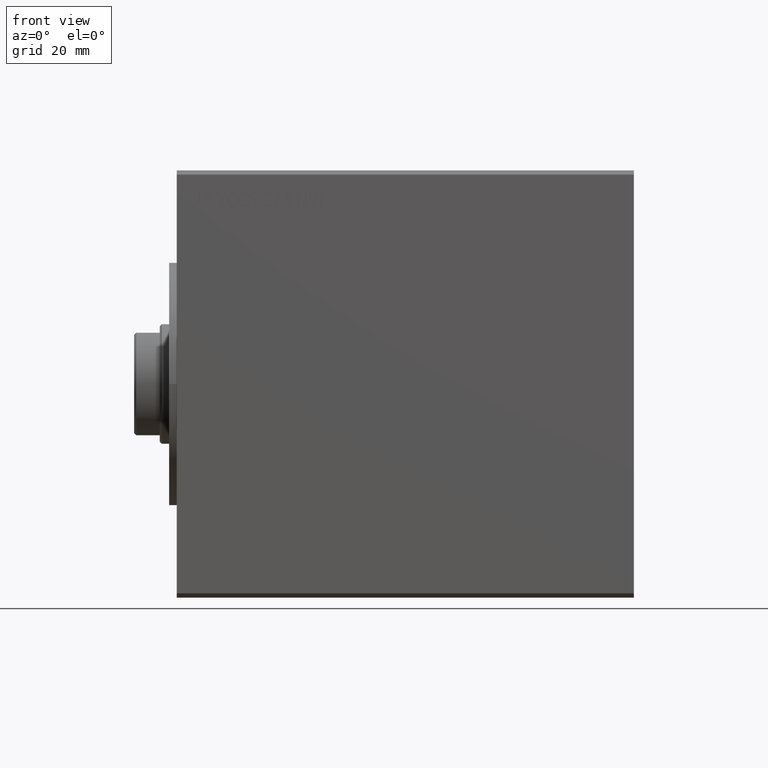
[diagram: clean part render]
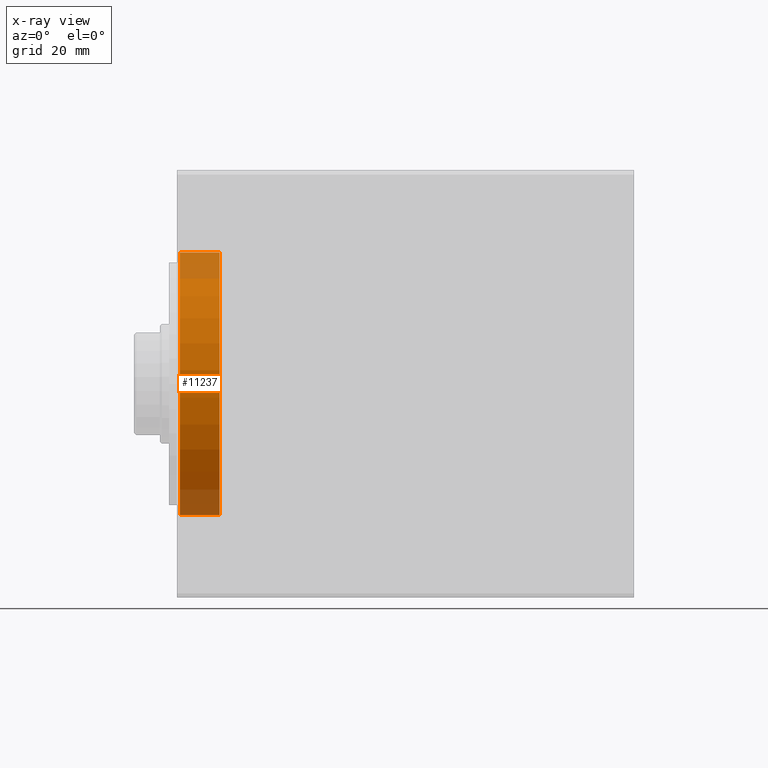
[diagram: x-ray — body ghosted, one internal face saturated and labeled with its STEP entity id]
A machine part, front view, then the same camera in x-ray: the body is ghosted and one INTERNAL B-rep face — a face not visible from any outside direction — is saturated and labeled: STEP entity #11237.
In plain terms, the highlighted cylindrical surface (partial cylindrical patch) has radius 30.75 mm, axis along (-1, -0, -0).
Its self-contained STEP definition (entity closure, byte-faithful):
#867 = VECTOR ( 'NONE', #19322, 1000.000000000000000 ) ;
#896 = DIRECTION ( 'NONE',  ( -1.000000000000000000, 0.000000000000000000, 0.000000000000000000 ) ) ;
#1929 = DIRECTION ( 'NONE',  ( 0.000000000000000000, 0.000000000000000000, 1.000000000000000000 ) ) ;
#2003 = CARTESIAN_POINT ( 'NONE',  ( 0.7000000000000234923, 0.000000000000000000, 30.75000000000000355 ) ) ;
#2114 = ORIENTED_EDGE ( 'NONE', *, *, #24834, .F. ) ;
#2620 = EDGE_CURVE ( 'NONE', #43793, #3829, #8526, .T. ) ;
#3179 = CARTESIAN_POINT ( 'NONE',  ( 0.7000000000000234923, 3.765788907378111328E-15, -30.75000000000000355 ) ) ;
#3648 = AXIS2_PLACEMENT_3D ( 'NONE', #8821, #22385, #1929 ) ;
#3829 = VERTEX_POINT ( 'NONE', #2003 ) ;
#4283 = CARTESIAN_POINT ( 'NONE',  ( 10.00000000000000000, 3.765788907378111328E-15, -30.75000000000000355 ) ) ;
#4829 = VERTEX_POINT ( 'NONE', #9778 ) ;
#7540 = AXIS2_PLACEMENT_3D ( 'NONE', #13144, #19372, #37168 ) ;
#7986 = EDGE_CURVE ( 'NONE', #4829, #43793, #38953, .T. ) ;
#8526 = CIRCLE ( 'NONE', #29827, 30.75000000000000355 ) ;
#8821 = CARTESIAN_POINT ( 'NONE',  ( 10.00000000000000000, 0.000000000000000000, 0.000000000000000000 ) ) ;
#9256 = ORIENTED_EDGE ( 'NONE', *, *, #2620, .T. ) ;
#9778 = CARTESIAN_POINT ( 'NONE',  ( 10.00000000000000000, 3.765788907378111328E-15, -30.75000000000000355 ) ) ;
#11237 = ADVANCED_FACE ( 'NONE', ( #14837 ), #38853, .F. ) ;
#13144 = CARTESIAN_POINT ( 'NONE',  ( 10.00000000000000000, 0.000000000000000000, 0.000000000000000000 ) ) ;
#13221 = CIRCLE ( 'NONE', #7540, 30.75000000000000355 ) ;
#14116 = EDGE_CURVE ( 'NONE', #43153, #3829, #15328, .T. ) ;
#14467 = DIRECTION ( 'NONE',  ( 0.000000000000000000, 0.000000000000000000, -1.000000000000000000 ) ) ;
#14837 = FACE_OUTER_BOUND ( 'NONE', #34643, .T. ) ;
#15328 = LINE ( 'NONE', #39139, #867 ) ;
#19322 = DIRECTION ( 'NONE',  ( -1.000000000000000000, -0.000000000000000000, -0.000000000000000000 ) ) ;
#19372 = DIRECTION ( 'NONE',  ( -1.000000000000000000, 0.000000000000000000, 0.000000000000000000 ) ) ;
#22385 = DIRECTION ( 'NONE',  ( -1.000000000000000000, -0.000000000000000000, -0.000000000000000000 ) ) ;
#24834 = EDGE_CURVE ( 'NONE', #4829, #43153, #13221, .T. ) ;
#27835 = VECTOR ( 'NONE', #41869, 1000.000000000000000 ) ;
#29013 = ORIENTED_EDGE ( 'NONE', *, *, #14116, .F. ) ;
#29827 = AXIS2_PLACEMENT_3D ( 'NONE', #30768, #896, #14467 ) ;
#30768 = CARTESIAN_POINT ( 'NONE',  ( 0.7000000000000234923, 0.000000000000000000, 0.000000000000000000 ) ) ;
#32374 = ORIENTED_EDGE ( 'NONE', *, *, #7986, .T. ) ;
#34643 = EDGE_LOOP ( 'NONE', ( #2114, #32374, #9256, #29013 ) ) ;
#37168 = DIRECTION ( 'NONE',  ( 0.000000000000000000, 0.000000000000000000, 1.000000000000000000 ) ) ;
#38853 = CYLINDRICAL_SURFACE ( 'NONE', #3648, 30.75000000000000355 ) ;
#38953 = LINE ( 'NONE', #4283, #27835 ) ;
#39139 = CARTESIAN_POINT ( 'NONE',  ( 10.00000000000000000, 0.000000000000000000, 30.75000000000000355 ) ) ;
#41869 = DIRECTION ( 'NONE',  ( -1.000000000000000000, -0.000000000000000000, -0.000000000000000000 ) ) ;
#42504 = CARTESIAN_POINT ( 'NONE',  ( 10.00000000000000000, 0.000000000000000000, 30.75000000000000355 ) ) ;
#43153 = VERTEX_POINT ( 'NONE', #42504 ) ;
#43793 = VERTEX_POINT ( 'NONE', #3179 ) ;